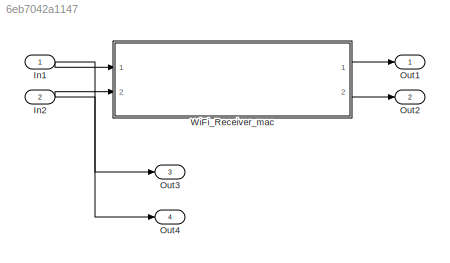
MODEL slx_6eb7042a1147
KIND model
CONFIG AbsTol = auto
CONFIG FixedStep = auto
CONFIG MaxStep = auto
CONFIG MinStep = auto
CONFIG RelTol = 1e-3
CONFIG SampleTimeConstraint = Unconstrained
CONFIG Solver = VariableStepAuto
CONFIG SolverMode = Auto
CONFIG SolverName = VariableStepAuto
CONFIG StartTime = 0.0
CONFIG StopTime = 10.0
BLOCK [Inport] In1
  IconDisplay = Port number
  OutDataTypeStr = boolean
  SampleTime = 0
BLOCK [Inport] In2
  IconDisplay = Port number
  OutDataTypeStr = uint8
  Port = 2
  SampleTime = 0
BLOCK [Outport] Out1
  IconDisplay = Port number
  OutDataTypeStr = fixdt(0,4,0)
BLOCK [Outport] Out2
  IconDisplay = Port number
  OutDataTypeStr = boolean
  Port = 2
BLOCK [Outport] Out3
  IconDisplay = Port number
  OutDataTypeStr = boolean
  Port = 3
BLOCK [Outport] Out4
  IconDisplay = Port number
  OutDataTypeStr = uint8
  Port = 4
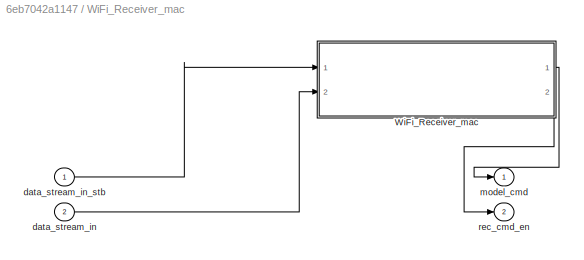
BLOCK [SubSystem] WiFi_Receiver_mac
  Ports = [2, 2]
  RequestExecContextInheritance = off
  Variant = off
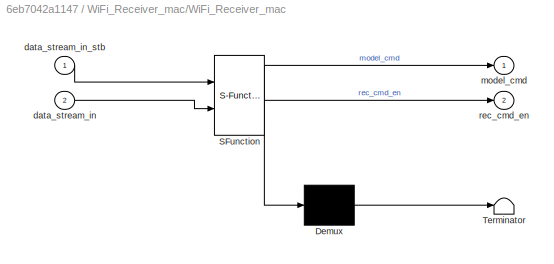
BLOCK [SubSystem] WiFi_Receiver_mac/WiFi_Receiver_mac
  ErrorFcn = Stateflow.Translate.translate
  PermitHierarchicalResolution = ExplicitOnly
  Ports = [2, 2]
  RequestExecContextInheritance = off
  SFBlockType = Chart
  TreatAsAtomicUnit = on
  Variant = off
BLOCK [Demux] WiFi_Receiver_mac/WiFi_Receiver_mac/ Demux 
  Outputs = 1
  Ports = [1, 1]
BLOCK [S-Function] WiFi_Receiver_mac/WiFi_Receiver_mac/ SFunction 
  EnableBusSupport = on
  FunctionName = sf_sfun
  PortCounts = [2 3]
  Ports = [2, 3]
  SFunctionDeploymentMode = off
  Tag = Stateflow S-Function gm_receive_OK 3
BLOCK [Terminator] WiFi_Receiver_mac/WiFi_Receiver_mac/ Terminator 
BLOCK [Inport] WiFi_Receiver_mac/WiFi_Receiver_mac/data_stream_in
  IconDisplay = Port number
  Port = 2
BLOCK [Inport] WiFi_Receiver_mac/WiFi_Receiver_mac/data_stream_in_stb
  IconDisplay = Port number
BLOCK [Outport] WiFi_Receiver_mac/WiFi_Receiver_mac/model_cmd
  IconDisplay = Port number
BLOCK [Outport] WiFi_Receiver_mac/WiFi_Receiver_mac/rec_cmd_en
  IconDisplay = Port number
  Port = 2
BLOCK [Inport] WiFi_Receiver_mac/data_stream_in
  IconDisplay = Port number
  Port = 2
  SampleTime = 0
BLOCK [Inport] WiFi_Receiver_mac/data_stream_in_stb
  IconDisplay = Port number
  SampleTime = 0
BLOCK [Outport] WiFi_Receiver_mac/model_cmd
  IconDisplay = Port number
BLOCK [Outport] WiFi_Receiver_mac/rec_cmd_en
  IconDisplay = Port number
  Port = 2
NET In1:1 -> Out3:1, WiFi_Receiver_mac:1
NET In2:1 -> Out4:1, WiFi_Receiver_mac:2
LINE WiFi_Receiver_mac/WiFi_Receiver_mac:1 -> WiFi_Receiver_mac/model_cmd:1
LINE WiFi_Receiver_mac/WiFi_Receiver_mac:2 -> WiFi_Receiver_mac/rec_cmd_en:1
LINE WiFi_Receiver_mac/data_stream_in:1 -> WiFi_Receiver_mac/WiFi_Receiver_mac:2
LINE WiFi_Receiver_mac/data_stream_in_stb:1 -> WiFi_Receiver_mac/WiFi_Receiver_mac:1
LINE WiFi_Receiver_mac:1 -> Out1:1
LINE WiFi_Receiver_mac:2 -> Out2:1
note: NET lines group one-source signal fan-out (src -> all destinations, sorted); 1:1 wires keep LINE
CHART WiFi_Receiver_mac/WiFi_Receiver_mac states=18 transitions=67
  STATE_LABEL 'wait_cmd\nentry:\nmodel_cmd=0;\nrec_cmd_en=0;\n'
  STATE_LABEL 'initial\nentry:\nmodel_cmd=0;\nrec_cmd_en=0;\ntime_cnt=0;\n'
  STATE_LABEL 'received_OK\nentry:\nmodel_cmd=1;\nrec_cmd_en=1;'
  STATE_LABEL 'detect_cmd'
  STATE_LABEL 'received_O'
  STATE_LABEL 'received_K'
  STATE_LABEL 'received_ERROR\nentry:\nmodel_cmd=2;\nrec_cmd_en=1;'
  STATE_LABEL 'time_out\ntime_cnt=0;\nmodel_cmd=2;\nrec_cmd_en=1;'
  STATE_LABEL 'received_E'
  STATE_LABEL 'received_R'
  STATE_LABEL 'received_R1'
  STATE_LABEL 'received_O1'
  STATE_LABEL 'received_R2'
  STATE_LABEL 'received_FAIL\nentry:\nmodel_cmd=3;\nrec_cmd_en=1;'
  STATE_LABEL 'received_F'
  STATE_LABEL 'received_A'
  STATE_LABEL 'received_I'
  STATE_LABEL 'received_L'
